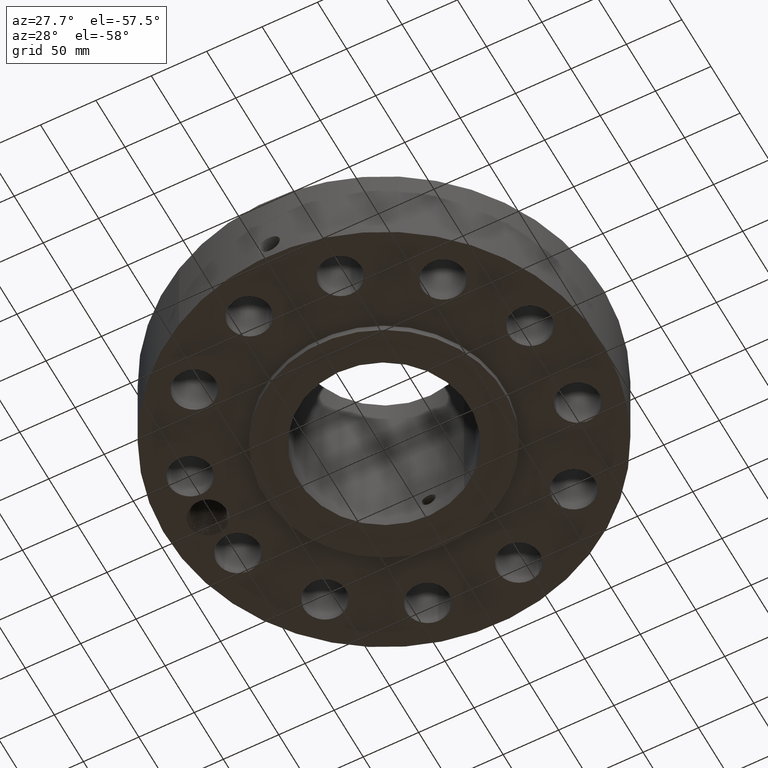
[diagram: clean part render]
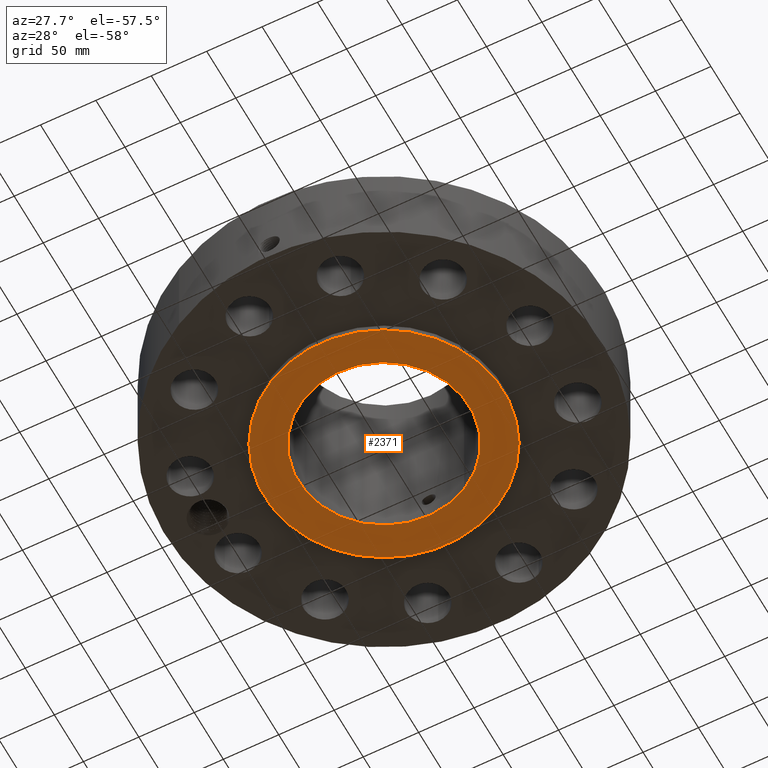
[diagram: same view with one face highlighted and labeled with its STEP entity id]
A machine part, auxiliary view. The second image highlights one B-rep face of the part: STEP entity #2371.
In plain terms, the highlighted planar face has unit normal (0, 0, -1).
Its self-contained STEP definition (entity closure, byte-faithful):
#1277=AXIS2_PLACEMENT_3D('Circle Axis2P3D',#1275,#1276,$) ;
#1303=AXIS2_PLACEMENT_3D('Circle Axis2P3D',#1301,#1302,$) ;
#2347=AXIS2_PLACEMENT_3D('Plane Axis2P3D',#2344,#2345,#2346) ;
#2355=AXIS2_PLACEMENT_3D('Circle Axis2P3D',#2353,#2354,$) ;
#2364=AXIS2_PLACEMENT_3D('Circle Axis2P3D',#2362,#2363,$) ;
#1275=CARTESIAN_POINT('Axis2P3D Location',(0.,0.,5.59482469102E-016)) ;
#1279=CARTESIAN_POINT('Vertex',(2.03755853908,3.72972588805,5.59482469102E-016)) ;
#1281=CARTESIAN_POINT('Vertex',(-2.03755853908,-3.72972588805,5.59482469102E-016)) ;
#1301=CARTESIAN_POINT('Axis2P3D Location',(0.,0.,5.59482469102E-016)) ;
#2344=CARTESIAN_POINT('Axis2P3D Location',(0.,3.03250000001,0.)) ;
#2353=CARTESIAN_POINT('Axis2P3D Location',(0.,0.,0.)) ;
#2357=CARTESIAN_POINT('Vertex',(1.45385794582,2.66126911894,-5.59482469102E-015)) ;
#2359=CARTESIAN_POINT('Vertex',(-1.45385794582,-2.66126911894,-5.59482469102E-015)) ;
#2362=CARTESIAN_POINT('Axis2P3D Location',(0.,0.,0.)) ;
#1276=DIRECTION('Axis2P3D Direction',(0.,0.,-0.0393700787402)) ;
#1302=DIRECTION('Axis2P3D Direction',(0.,0.,-0.0393700787402)) ;
#2345=DIRECTION('Axis2P3D Direction',(0.,0.,-0.0393700787402)) ;
#2346=DIRECTION('Axis2P3D XDirection',(0.0393700787402,0.,0.)) ;
#2354=DIRECTION('Axis2P3D Direction',(0.,0.,-0.0393700787402)) ;
#2363=DIRECTION('Axis2P3D Direction',(0.,0.,-0.0393700787402)) ;
#2350=ORIENTED_EDGE('',*,*,#1305,.T.) ;
#2351=ORIENTED_EDGE('',*,*,#1283,.T.) ;
#2368=ORIENTED_EDGE('',*,*,#2361,.F.) ;
#2369=ORIENTED_EDGE('',*,*,#2366,.F.) ;
#2370=FACE_BOUND('',#2367,.T.) ;
#2371=ADVANCED_FACE('PartBody',(#2352,#2370),#2348,.T.) ;
#1278=CIRCLE('generated circle',#1277,4.25000000002) ;
#1304=CIRCLE('generated circle',#1303,4.25000000002) ;
#2356=CIRCLE('generated circle',#2355,3.03250000001) ;
#2365=CIRCLE('generated circle',#2364,3.03250000001) ;
#1283=EDGE_CURVE('',#1280,#1282,#1278,.T.) ;
#1305=EDGE_CURVE('',#1282,#1280,#1304,.T.) ;
#2361=EDGE_CURVE('',#2358,#2360,#2356,.T.) ;
#2366=EDGE_CURVE('',#2360,#2358,#2365,.T.) ;
#2349=EDGE_LOOP('',(#2350,#2351)) ;
#2367=EDGE_LOOP('',(#2368,#2369)) ;
#2352=FACE_OUTER_BOUND('',#2349,.T.) ;
#2348=PLANE('',#2347) ;
#1280=VERTEX_POINT('',#1279) ;
#1282=VERTEX_POINT('',#1281) ;
#2358=VERTEX_POINT('',#2357) ;
#2360=VERTEX_POINT('',#2359) ;